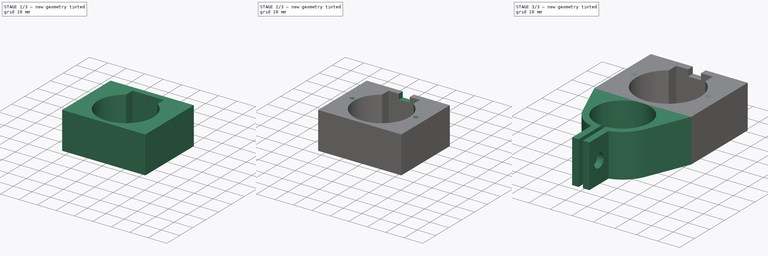
[diagram: build sequence overview — one tinted view per stage of 3, left to right]
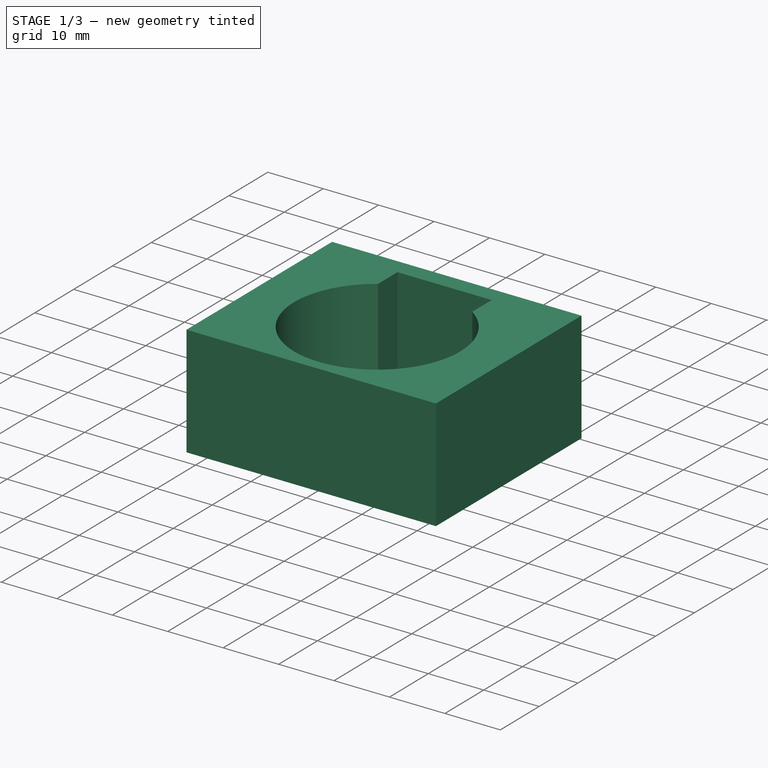
[diagram: stage 1 of 3 — iso view after this stage's code; geometry added in this stage tinted green]
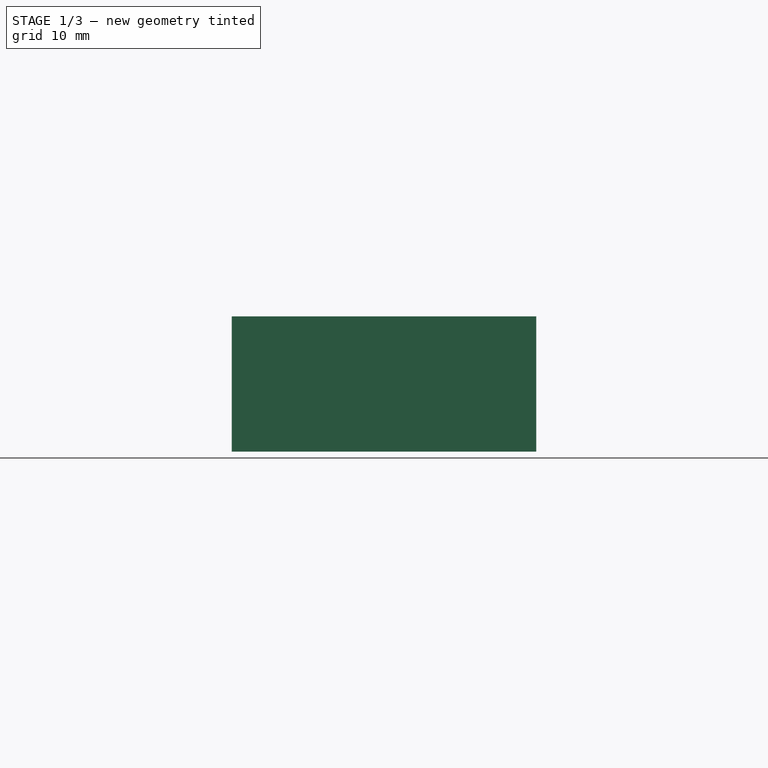
[diagram: stage 1 of 3 — front view after this stage's code; geometry added in this stage tinted green]
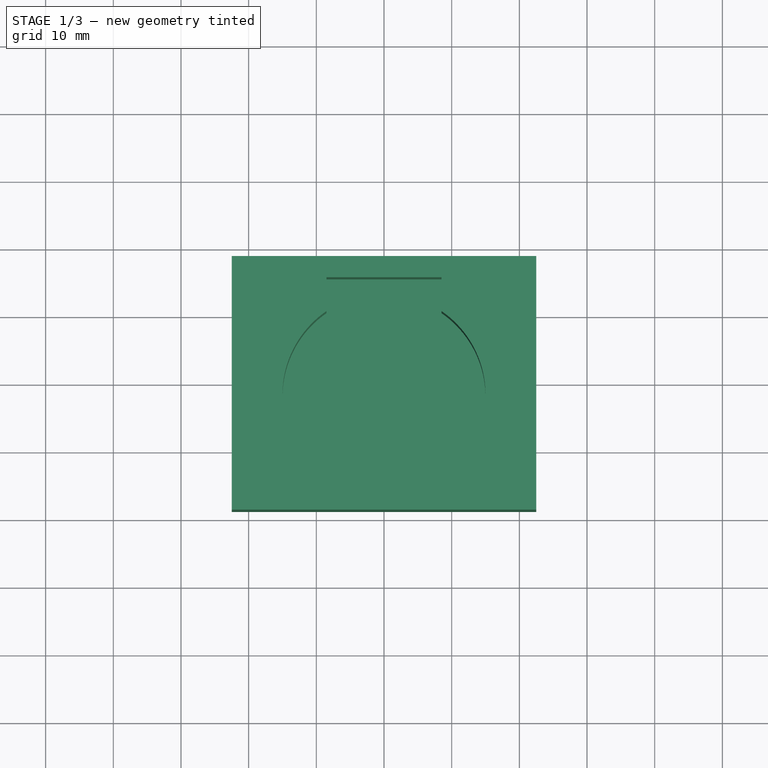
[diagram: stage 1 of 3 — top view after this stage's code; geometry added in this stage tinted green]
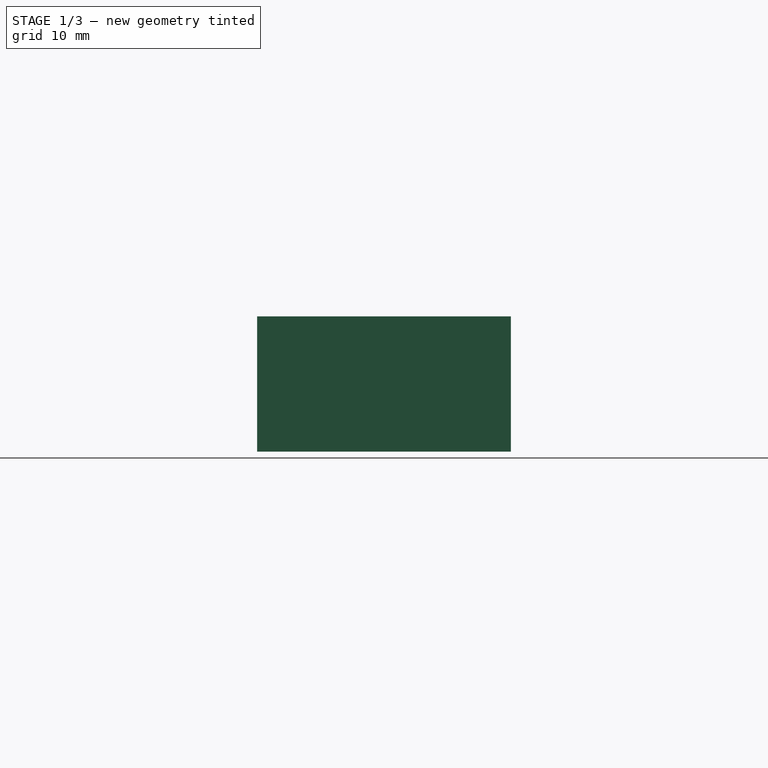
[diagram: stage 1 of 3 — right view after this stage's code; geometry added in this stage tinted green]
FCSTD DOCUMENT  (FreeCAD 0.20R29177 +233 (Git))
Label: motor_mount-with-threads
License: All rights reserved
LicenseURL: http://en.wikipedia.org/wiki/All_rights_reserved
objects: Sketcher::SketchObject×6, PartDesign::Pocket×3, PartDesign::Pad×2, Part::Part2DObjectPython×2, Part::Helix×2, PartDesign::SubtractivePipe×2, PartDesign::Body×1
note: 25 computed .brp shape members not serialized (recipe doc carries the construction recipe); baked Part::Feature solids carry a one-line shape summary decoded from their .brp

FEATURE [Sketcher::SketchObject] Sketch
  FullyConstrained = true
  MapMode = 5
  Support = -> [XY_Plane]
  sketch-geometry (6):
    g0: LineSegment StartX=-22.5 StartY=18.75 StartZ=0 EndX=22.5 EndY=18.75 EndZ=0
    g1: LineSegment StartX=22.5 StartY=18.75 StartZ=0 EndX=22.5 EndY=-18.75 EndZ=0
    g2: LineSegment StartX=22.5 StartY=-18.75 StartZ=0 EndX=-22.5 EndY=-18.75 EndZ=0
    g3: LineSegment StartX=-22.5 StartY=-18.75 StartZ=0 EndX=-22.5 EndY=18.75 EndZ=0
    g4: LineSegment StartX=0 StartY=18.75 StartZ=0 EndX=0 EndY=-18.75 EndZ=0
    g5: LineSegment StartX=-22.5 StartY=0 StartZ=0 EndX=22.5 EndY=0 EndZ=0
  constraints (18):
    c: Coincident(g0,g1)
    c: Coincident(g1,g2)
    c: Coincident(g2,g3)
    c: Coincident(g3,g0)
    c: Horizontal(g0)
    c: Horizontal(g2)
    c: Vertical(g1)
    c: Vertical(g3)
    c: PointOnObject(g4,g-2)
    c: PointOnObject(g4,g-2)
    c: PointOnObject(g5,g-1)
    c: PointOnObject(g5,g-1)
    c: Symmetric(g0,g0,g4)
    c: Symmetric(g0,g2,g5)
    c: PointOnObject(g4,g2)
    c: PointOnObject(g5,g1)
    c: DistanceX(g0,g0) = 45
    c: DistanceY(g3,g3) = 37.5
FEATURE [PartDesign::Pad] Pad
  Direction = (0,0,1)
  Length = 20
  Length2 = 10
  Profile = -> Sketch
  ReferenceAxis = -> Sketch [N_Axis]
  Type = 0
FEATURE [Sketcher::SketchObject] Sketch001
  ExternalGeometry = -> [Pad]
  FullyConstrained = true
  MapMode = 5
  Placement = pos=(0,0,20) rot=(0,0,1;0rad)
  Support = -> [Pad]
  sketch-geometry (7):
    g0: Circle CenterX=0 CenterY=-1.75 CenterZ=0 NormalX=0 NormalY=0 NormalZ=1 AngleXU=0 Radius=15
    g1: LineSegment StartX=-8.5 StartY=10.6092 StartZ=0 EndX=8.5 EndY=10.6092 EndZ=0
    g2: LineSegment StartX=8.5 StartY=10.6092 StartZ=0 EndX=8.5 EndY=15.6092 EndZ=0
    g3: LineSegment StartX=8.5 StartY=15.6092 StartZ=0 EndX=-8.5 EndY=15.6092 EndZ=0
    g4: LineSegment StartX=-8.5 StartY=15.6092 StartZ=0 EndX=-8.5 EndY=10.6092 EndZ=0
    g5: ArcOfCircle CenterX=0 CenterY=-1.75 CenterZ=0 NormalX=0 NormalY=0 NormalZ=1 AngleXU=0 Radius=15 StartAngle=2.17325 EndAngle=7.25153
    g6: LineSegment StartX=0 StartY=-16.75 StartZ=0 EndX=0 EndY=-18.75 EndZ=0
  constraints (21):
    c: PointOnObject(g0,g-2)
    c: Diameter(g0) = 30
    c: Coincident(g1,g2)
    c: Coincident(g2,g3)
    c: Coincident(g3,g4)
    c: Coincident(g4,g1)
    c: Horizontal(g1)
    c: Horizontal(g3)
    c: Vertical(g2)
    c: Vertical(g4)
    c: PointOnObject(g1,g0)
    c: Coincident(g5,g0)
    c: Coincident(g5,g2)
    c: Coincident(g5,g4)
    c: PointOnObject(g6,g0)
    c: PointOnObject(g6,g-3)
    c: Vertical(g6)
    c: PointOnObject(g6,g-2)
    c: DistanceY(g6,g6) = 2
    c: DistanceX(g1,g1) = 17
    c: DistanceY(g2,g2) = 5
FEATURE [PartDesign::Pocket] Pocket
  BaseFeature = -> Pad
  Direction = (0,0,-1)
  Length = 18
  Length2 = 5
  Profile = -> Sketch001
  ReferenceAxis = -> Sketch001 [N_Axis]
  Type = 0
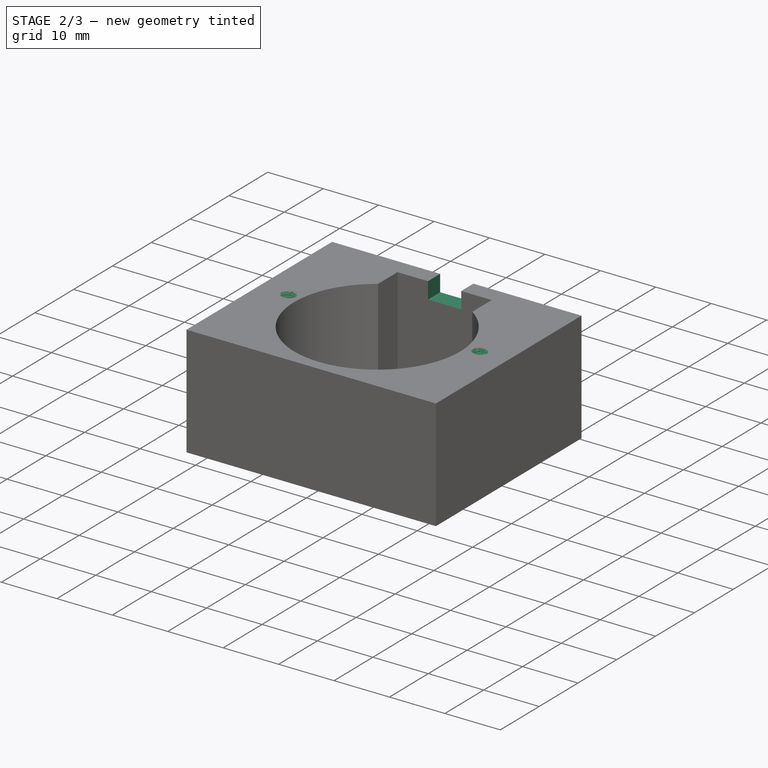
[diagram: stage 2 of 3 — iso view after this stage's code; geometry added in this stage tinted green]
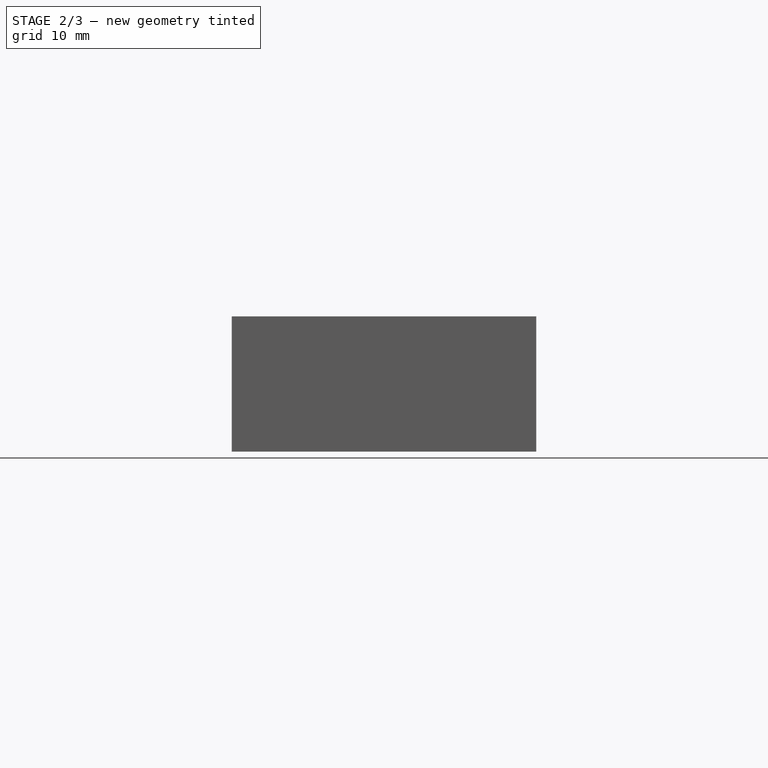
[diagram: stage 2 of 3 — front view after this stage's code; geometry added in this stage tinted green]
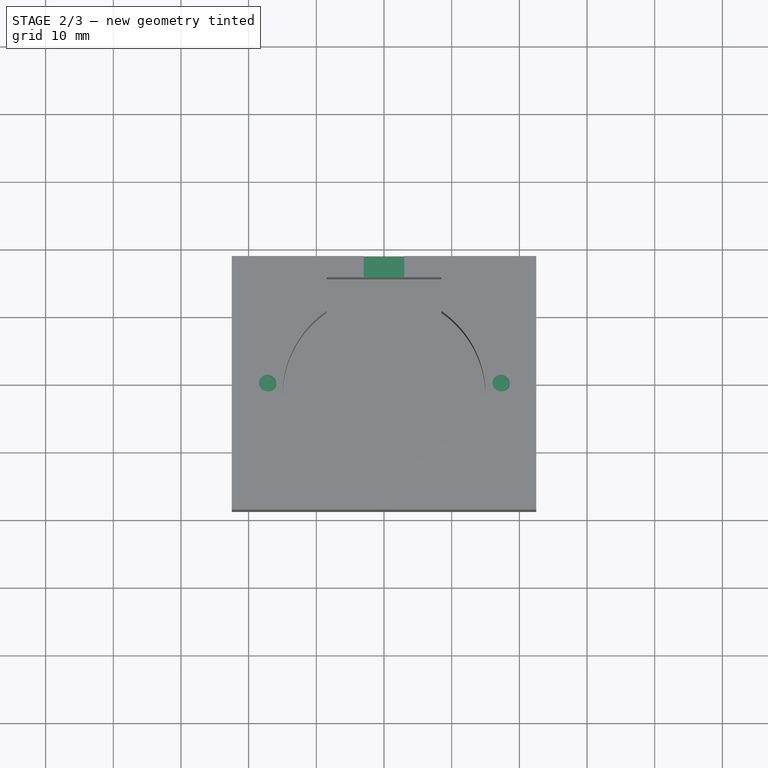
[diagram: stage 2 of 3 — top view after this stage's code; geometry added in this stage tinted green]
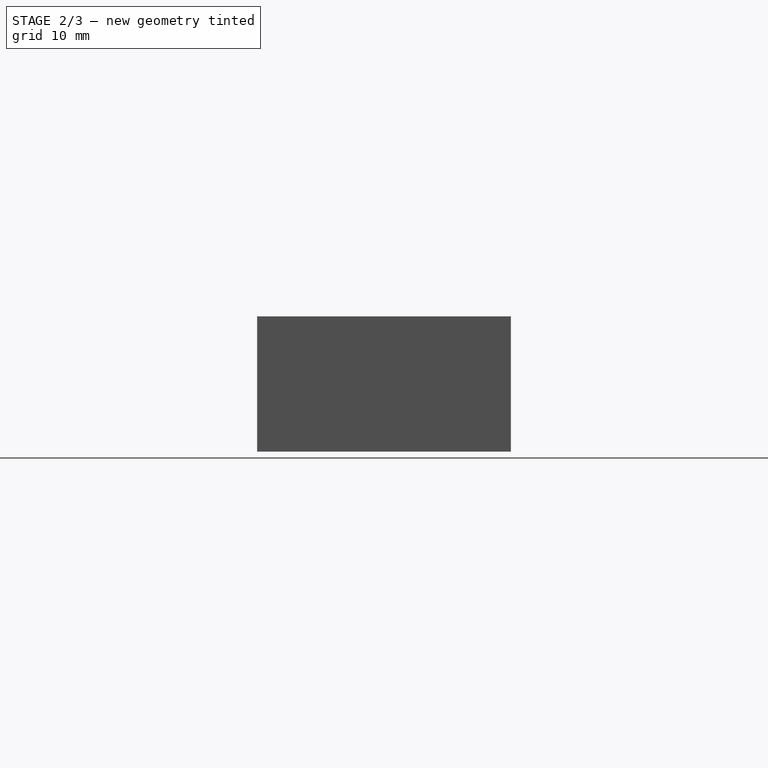
[diagram: stage 2 of 3 — right view after this stage's code; geometry added in this stage tinted green]
FEATURE [Sketcher::SketchObject] Sketch002
  FullyConstrained = true
  MapMode = 5
  Placement = pos=(0,0,20) rot=(0,0,1;0rad)
  Support = -> [Pocket]
  sketch-geometry (3):
    g0: Circle CenterX=-17.25 CenterY=0 CenterZ=0 NormalX=0 NormalY=0 NormalZ=1 AngleXU=0 Radius=0.5
    g1: LineSegment StartX=-17.25 StartY=0 StartZ=0 EndX=17.25 EndY=0 EndZ=0
    g2: Circle CenterX=17.25 CenterY=0 CenterZ=0 NormalX=0 NormalY=0 NormalZ=1 AngleXU=0 Radius=0.5
  constraints (7):
    c: PointOnObject(g0,g-1)
    c: Coincident(g1,g0)
    c: Symmetric(g1,g0,g-1)
    c: Diameter(g0) = 1
    c: Coincident(g2,g1)
    c: Equal(g2,g0)
    c: DistanceX(g1,g1) = 34.5
FEATURE [Part::Part2DObjectPython] VThreadProfile  # Draft 2D object (typed FeaturePython)
  Area = 5.7561
  Closed = true
  Continuity = C2
  Height = 15
  Helix = Helix
  Instructions = Expand this with the ... button to view instructions | Sweep this object along a helix of the same pitch to produce your thread. | It is recommended to make the helix in the ThreadProfile workbench. | If there is an active Body the ThreadProfile object will be put into it.,If not it can be dragged and dropped into the body later. | If there is an active Body when the helix is made there will be made a ShapeBinder for it | For internal threads you will need to cut the Sweep object out of a cylinder, or if using Part Design sweep it as a Subtractive Pipe. | Always use Frenet mode | I have provided some presets, but it is possible there could be some errors.  Double check for mission critical applications. | Also, the tolerances might be different from what you wish to have.  I believe the internal minor diameters are all minimum and the external are all maximum.
  InternalOrExternal = 0
  MakeFace = true
  MapMode = 11
  MinorDiameter = 2.459
  Parameterization = 1
  Pitch = 0.5
  Placement = pos=(-17.25,0,20) rot=(0.707107,-0.707107,0;3.14159rad)
  Points = (66) [(1.22382,0.118006,0),(1.20685,0.234922,0),(1.17873,0.349669,0),(1.13973,0.461188,0),(1.0902,0.568448,0),(1.03061,0.670459,0),(0.961501,0.766281,0),+59 more]
  Presets = 11
  Quality = 11
  Support = -> [Sketch002]
  ThreadCount = 30
  Variants = 0
  Version = 1.83
  external2S_data = [-0.00461051,-0.00886426,-0.0128148,-0.0165028,-0.0199596,-0.0232105,-0.0262759,-0.0291725,-0.0319145,-0.0345137,-0.0369805,-0.0393235,-0.0415505,-0.0436681,-0.0456823,-0.0475981,-0.0494204,-0.0511532,-0.0528003,-0.0543649,-0.0558502,+698 more]
  external3S_data = [-0.00677828,-0.0128149,-0.0182584,-0.0232106,-0.0277444,-0.0319145,-0.0357632,-0.0393236,-0.0426227,-0.0456823,-0.0485208,-0.0511533,-0.0535928,-0.0558503,-0.0579353,-0.059856,-0.0616195,-0.0632319,-0.0646984,-0.0660239,-0.0672123,+698 more]
  external45_data = [-0.00137363,-0.00271738,-0.00403219,-0.00531893,-0.00657844,-0.00781148,-0.00901878,-0.010201,-0.0113589,-0.012493,-0.0136039,-0.0146921,-0.0157583,-0.0168028,-0.0178261,-0.0188288,-0.0198112,-0.0207738,-0.0217169,-0.0226409,-0.0235462,+698 more]
  external_data = [-0.00235387,-0.00461052,-0.00677828,-0.00886428,-0.0108747,-0.0128149,-0.0146895,-0.0165028,-0.0182584,-0.0199597,-0.0216095,-0.0232106,-0.0247653,-0.0262759,-0.0277444,-0.0291725,-0.0305621,-0.0319145,-0.0332313,-0.0345138,-0.0357632,+698 more]
  internal2S_data = [0,0,0,0,0,0,0,0,0,0,0,0,0,0,0,0,0,0,0,0,0,0,0,0,0,0,0,0,0,0,0,0,0,0,0,0,0,0,0,0,0,0,0,0,0,0,0,0,0,0,0,0,0,0,0,0,0,0,0,0,0,0,0,0,0,0,0,0,0,0,0,0,0,0,0,0,0,0,0,0,0,0,0,0,0,0,0,0,0,0,0.00481128,0.00962256,0.0144338,0.0192451,0.0240564,+624 more]
  internal3S_data = [0,0,0,0,0,0,0,0,0,0,0,0,0,0,0,0,0,0,0,0,0,0,0,0,0,0,0,0,0,0,0,0,0,0,0,0,0,0,0,0,0,0,0,0,0,0,0,0,0,0,0,0,0,0,0,0,0,0,0,0,0.00721688,0.0144338,0.0216506,0.0288675,0.0360844,0.0433013,0.0505181,0.057735,0.0649519,0.0721688,0.0793857,0.0866025,+647 more]
  internal45_data = [0,0,0,0,0,0,0,0,0,0,0,0,0,0,0,0,0,0,0,0,0,0,0,0,0,0,0,0,0,0,0,0,0,0,0,0,0,0,0,0,0,0,0,0,0,0,0,0,0,0,0,0,0,0,0,0,0,0,0,0,0,0,0,0,0,0,0,0,0,0,0,0,0,0,0,0,0,0,0,0,0,0,0,0,0,0,0,0,0,0,0,0,0,0,0,0,0,0,0,0,0,0,0,0,0,0,0,0,0,0,0,0,0,0,0,0,0,0,0,0,+599 more]
  internal_data = [0,0,0,0,0,0,0,0,0,0,0,0,0,0,0,0,0,0,0,0,0,0,0,0,0,0,0,0,0,0,0,0,0,0,0,0,0,0,0,0,0,0,0,0,0,0,0,0,0,0,0,0,0,0,0,0,0,0,0,0,0,0,0,0,0,0,0,0,0,0,0,0,0,0,0,0,0,0,0,0,0,0,0,0,0,0,0,0,0,0,0,0,0,0,0,0,0,0,0,0,0,0,0,0,0,0,0,0,0,0,0,0,0,0,0,0,0,0,0,0,+599 more]
  preset_names = <blob: 3959 chars omitted>
  presets_data = [0,0,0,2.20878,24.1173,24.6888,0.25,0.693,0.729,0.25,0.793,0.829,0.25,0.893,0.929,0.3,1.032,1.075,0.35,1.171,1.221,0.35,1.371,1.421,0.4,1.509,1.567,0.45,1.648,1.713,0.45,1.948,2.013,0.5,2.387,2.459,0.6,2.764,2.85,0.7,3.141,3.242,0.75,3.58,+712 more]
FEATURE [Part::Helix] Helix
  Angle = 0
  AttacherType = Attacher::AttachEngine3D
  Height = 15
  LocalCoord = 0
  MapMode = 11
  Pitch = 0.5
  Placement = pos=(-17.25,0,20) rot=(0.707107,-0.707107,0;3.14159rad)
  Radius = 1
  SegmentLength = 0
  Style = 0
  Support = -> [Sketch002]
  expr: AttachmentOffset = VThreadProfile.AttachmentOffset
  expr: Height = VThreadProfile.ThreadCount * VThreadProfile.Pitch
  expr: MapMode = VThreadProfile.MapMode
  expr: MapPathParameter = VThreadProfile.MapPathParameter
  expr: MapReversed = VThreadProfile.MapReversed
  expr: Pitch = VThreadProfile.Pitch
  expr: Support = VThreadProfile.Support
FEATURE [PartDesign::SubtractivePipe] SubtractivePipe
  AuxilleryCurvelinear = true
  AuxillerySpineTangent = false
  BaseFeature = -> Pocket
  Binormal = (0,0,0)
  Mode = 2
  Profile = -> VThreadProfile
  Spine = -> Helix
  SpineTangent = false
  Transformation = 0
  Transition = 0
FEATURE [Part::Part2DObjectPython] VThreadProfile001  # Draft 2D object (typed FeaturePython)
  Area = 5.7561
  Closed = true
  Continuity = C2
  Height = 15
  Helix = Helix001
  Instructions = Expand this with the ... button to view instructions | Sweep this object along a helix of the same pitch to produce your thread. | It is recommended to make the helix in the ThreadProfile workbench. | If there is an active Body the ThreadProfile object will be put into it.,If not it can be dragged and dropped into the body later. | If there is an active Body when the helix is made there will be made a ShapeBinder for it | For internal threads you will need to cut the Sweep object out of a cylinder, or if using Part Design sweep it as a Subtractive Pipe. | Always use Frenet mode | I have provided some presets, but it is possible there could be some errors.  Double check for mission critical applications. | Also, the tolerances might be different from what you wish to have.  I believe the internal minor diameters are all minimum and the external are all maximum.
  InternalOrExternal = 0
  MakeFace = true
  MapMode = 11
  MinorDiameter = 2.459
  Parameterization = 1
  Pitch = 0.5
  Placement = pos=(17.25,0,20) rot=(0.707107,-0.707107,0;3.14159rad)
  Points = (66) [(1.22382,0.118006,0),(1.20685,0.234922,0),(1.17873,0.349669,0),(1.13973,0.461188,0),(1.0902,0.568448,0),(1.03061,0.670459,0),(0.961501,0.766281,0),+59 more]
  Presets = 11
  Quality = 11
  Support = -> [Sketch002]
  ThreadCount = 30
  Variants = 0
  Version = 1.83
  external2S_data = [-0.00461051,-0.00886426,-0.0128148,-0.0165028,-0.0199596,-0.0232105,-0.0262759,-0.0291725,-0.0319145,-0.0345137,-0.0369805,-0.0393235,-0.0415505,-0.0436681,-0.0456823,-0.0475981,-0.0494204,-0.0511532,-0.0528003,-0.0543649,-0.0558502,+698 more]
  external3S_data = [-0.00677828,-0.0128149,-0.0182584,-0.0232106,-0.0277444,-0.0319145,-0.0357632,-0.0393236,-0.0426227,-0.0456823,-0.0485208,-0.0511533,-0.0535928,-0.0558503,-0.0579353,-0.059856,-0.0616195,-0.0632319,-0.0646984,-0.0660239,-0.0672123,+698 more]
  external45_data = [-0.00137363,-0.00271738,-0.00403219,-0.00531893,-0.00657844,-0.00781148,-0.00901878,-0.010201,-0.0113589,-0.012493,-0.0136039,-0.0146921,-0.0157583,-0.0168028,-0.0178261,-0.0188288,-0.0198112,-0.0207738,-0.0217169,-0.0226409,-0.0235462,+698 more]
  external_data = [-0.00235387,-0.00461052,-0.00677828,-0.00886428,-0.0108747,-0.0128149,-0.0146895,-0.0165028,-0.0182584,-0.0199597,-0.0216095,-0.0232106,-0.0247653,-0.0262759,-0.0277444,-0.0291725,-0.0305621,-0.0319145,-0.0332313,-0.0345138,-0.0357632,+698 more]
  internal2S_data = [0,0,0,0,0,0,0,0,0,0,0,0,0,0,0,0,0,0,0,0,0,0,0,0,0,0,0,0,0,0,0,0,0,0,0,0,0,0,0,0,0,0,0,0,0,0,0,0,0,0,0,0,0,0,0,0,0,0,0,0,0,0,0,0,0,0,0,0,0,0,0,0,0,0,0,0,0,0,0,0,0,0,0,0,0,0,0,0,0,0,0.00481128,0.00962256,0.0144338,0.0192451,0.0240564,+624 more]
  internal3S_data = [0,0,0,0,0,0,0,0,0,0,0,0,0,0,0,0,0,0,0,0,0,0,0,0,0,0,0,0,0,0,0,0,0,0,0,0,0,0,0,0,0,0,0,0,0,0,0,0,0,0,0,0,0,0,0,0,0,0,0,0,0.00721688,0.0144338,0.0216506,0.0288675,0.0360844,0.0433013,0.0505181,0.057735,0.0649519,0.0721688,0.0793857,0.0866025,+647 more]
  internal45_data = [0,0,0,0,0,0,0,0,0,0,0,0,0,0,0,0,0,0,0,0,0,0,0,0,0,0,0,0,0,0,0,0,0,0,0,0,0,0,0,0,0,0,0,0,0,0,0,0,0,0,0,0,0,0,0,0,0,0,0,0,0,0,0,0,0,0,0,0,0,0,0,0,0,0,0,0,0,0,0,0,0,0,0,0,0,0,0,0,0,0,0,0,0,0,0,0,0,0,0,0,0,0,0,0,0,0,0,0,0,0,0,0,0,0,0,0,0,0,0,0,+599 more]
  internal_data = [0,0,0,0,0,0,0,0,0,0,0,0,0,0,0,0,0,0,0,0,0,0,0,0,0,0,0,0,0,0,0,0,0,0,0,0,0,0,0,0,0,0,0,0,0,0,0,0,0,0,0,0,0,0,0,0,0,0,0,0,0,0,0,0,0,0,0,0,0,0,0,0,0,0,0,0,0,0,0,0,0,0,0,0,0,0,0,0,0,0,0,0,0,0,0,0,0,0,0,0,0,0,0,0,0,0,0,0,0,0,0,0,0,0,0,0,0,0,0,0,+599 more]
  preset_names = <blob: 3959 chars omitted>
  presets_data = [0,0,0,2.20878,24.1173,24.6888,0.25,0.693,0.729,0.25,0.793,0.829,0.25,0.893,0.929,0.3,1.032,1.075,0.35,1.171,1.221,0.35,1.371,1.421,0.4,1.509,1.567,0.45,1.648,1.713,0.45,1.948,2.013,0.5,2.387,2.459,0.6,2.764,2.85,0.7,3.141,3.242,0.75,3.58,+712 more]
FEATURE [Part::Helix] Helix001
  Angle = 0
  AttacherType = Attacher::AttachEngine3D
  Height = 15
  LocalCoord = 0
  MapMode = 11
  Pitch = 0.5
  Placement = pos=(17.25,0,20) rot=(0.707107,-0.707107,0;3.14159rad)
  Radius = 1
  SegmentLength = 0
  Style = 0
  Support = -> [Sketch002]
  expr: AttachmentOffset = VThreadProfile001.AttachmentOffset
  expr: Height = VThreadProfile001.ThreadCount * VThreadProfile001.Pitch
  expr: MapMode = VThreadProfile001.MapMode
  expr: MapPathParameter = VThreadProfile001.MapPathParameter
  expr: MapReversed = VThreadProfile001.MapReversed
  expr: Pitch = VThreadProfile001.Pitch
  expr: Support = VThreadProfile001.Support
FEATURE [PartDesign::SubtractivePipe] SubtractivePipe001
  AuxilleryCurvelinear = true
  AuxillerySpineTangent = false
  BaseFeature = -> SubtractivePipe
  Binormal = (0,0,0)
  Mode = 2
  Profile = -> VThreadProfile001
  Spine = -> Helix001
  SpineTangent = false
  Transformation = 0
  Transition = 0
FEATURE [Sketcher::SketchObject] Sketch003
  ExternalGeometry = -> [SubtractivePipe001]
  FullyConstrained = true
  MapMode = 5
  Placement = pos=(0,0,20) rot=(0,0,1;0rad)
  Support = -> [SubtractivePipe001]
  sketch-geometry (5):
    g0: LineSegment StartX=-3 StartY=18.75 StartZ=0 EndX=3 EndY=18.75 EndZ=0
    g1: LineSegment StartX=3 StartY=18.75 StartZ=0 EndX=3 EndY=15.6092 EndZ=0
    g2: LineSegment StartX=3 StartY=15.6092 StartZ=0 EndX=-3 EndY=15.6092 EndZ=0
    g3: LineSegment StartX=-3 StartY=15.6092 StartZ=0 EndX=-3 EndY=18.75 EndZ=0
    g4: LineSegment StartX=0 StartY=18.75 StartZ=0 EndX=0 EndY=15.6092 EndZ=0
  constraints (15):
    c: Coincident(g0,g1)
    c: Coincident(g1,g2)
    c: Coincident(g2,g3)
    c: Coincident(g3,g0)
    c: Horizontal(g0)
    c: Horizontal(g2)
    c: Vertical(g1)
    c: Vertical(g3)
    c: PointOnObject(g0,g-3)
    c: PointOnObject(g4,g0)
    c: Vertical(g4)
    c: Symmetric(g2,g1,g4)
    c: PointOnObject(g4,g-2)
    c: DistanceX(g0,g0) = 6
    c: PointOnObject(g1,g-5)
FEATURE [PartDesign::Pocket] Pocket001
  BaseFeature = -> SubtractivePipe001
  Direction = (0,0,-1)
  Length = 3
  Length2 = 5
  Profile = -> Sketch003
  ReferenceAxis = -> Sketch003 [N_Axis]
  Type = 0
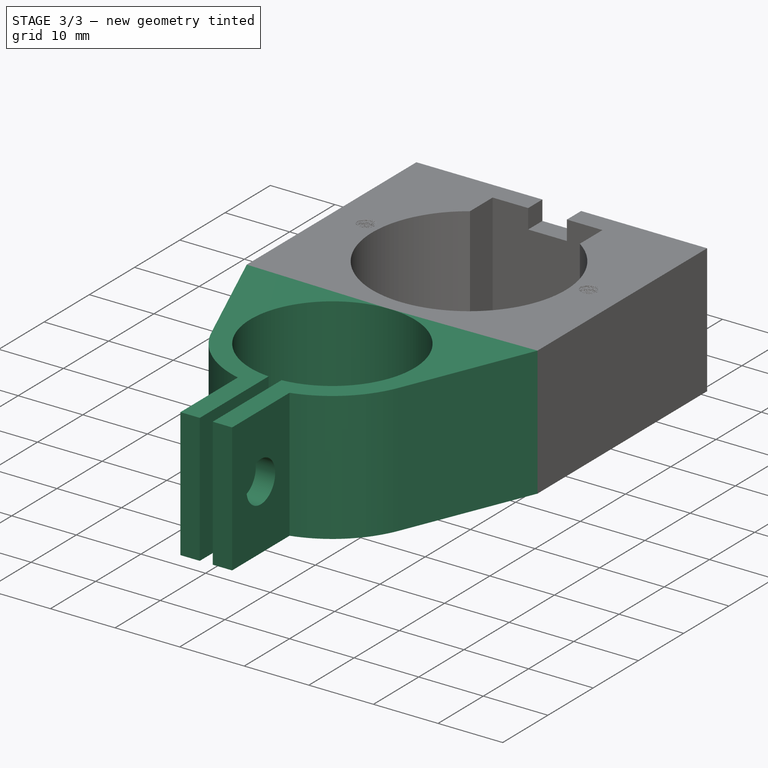
[diagram: stage 3 of 3 — iso view after this stage's code; geometry added in this stage tinted green]
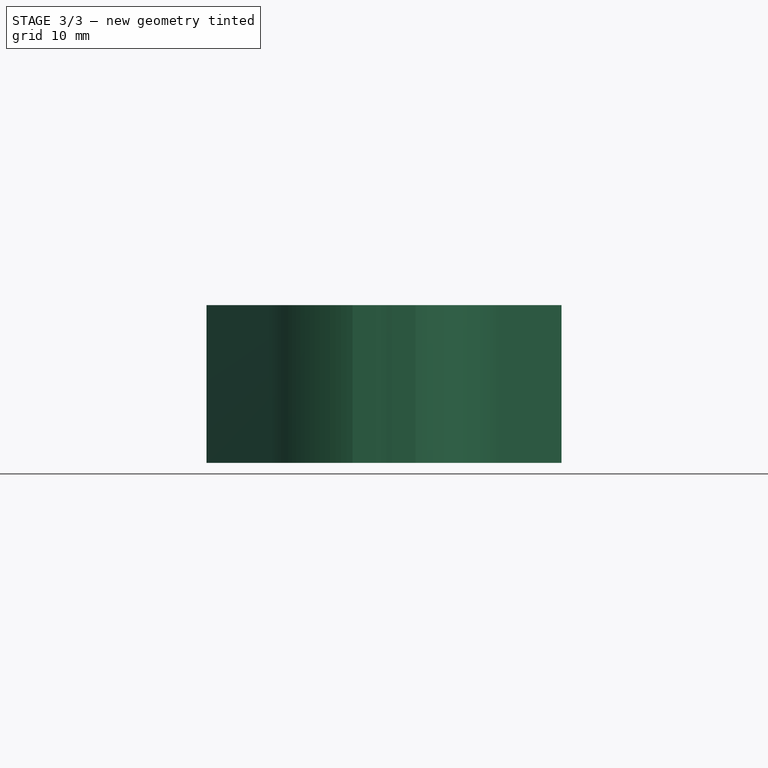
[diagram: stage 3 of 3 — front view after this stage's code; geometry added in this stage tinted green]
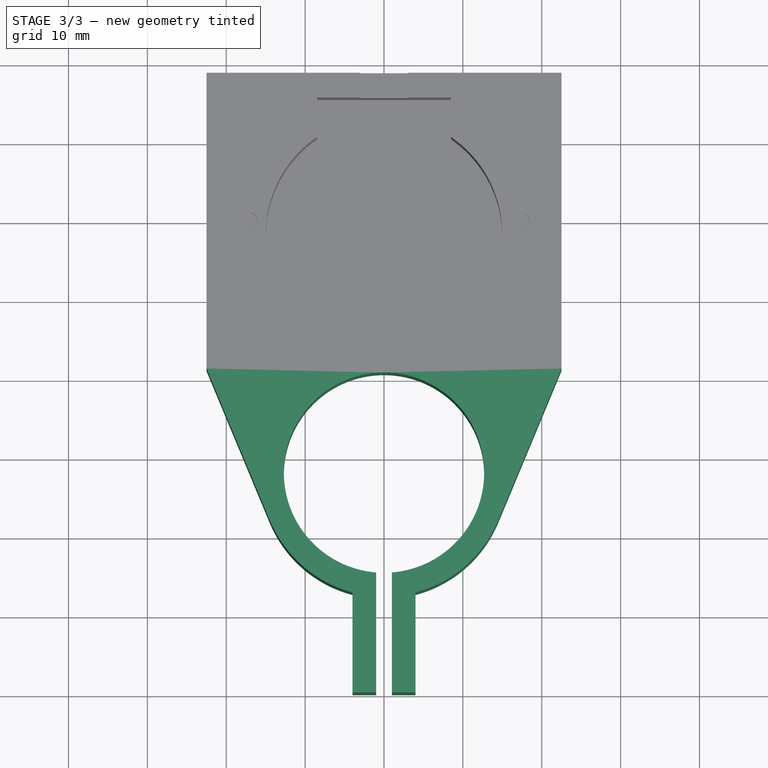
[diagram: stage 3 of 3 — top view after this stage's code; geometry added in this stage tinted green]
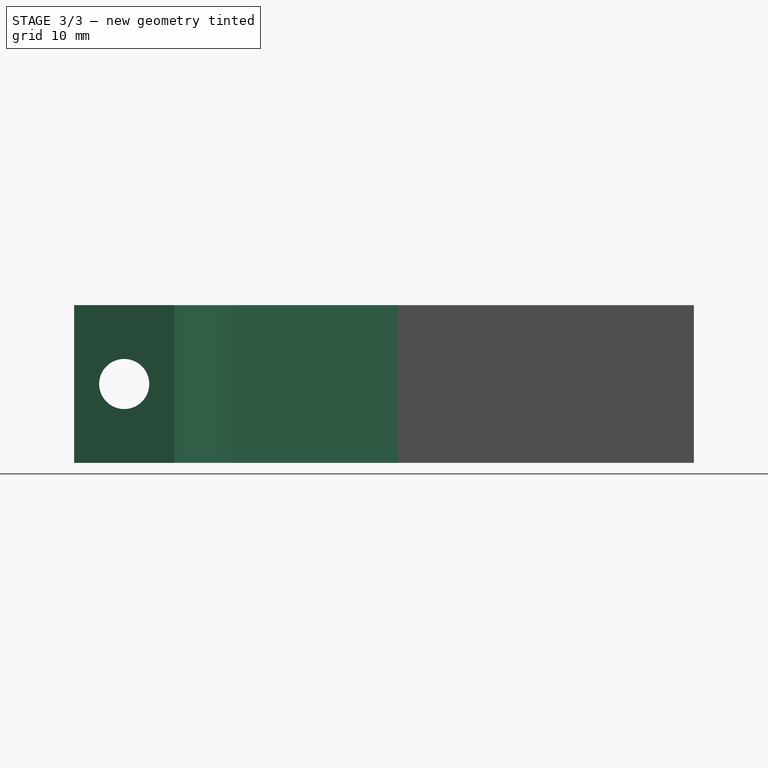
[diagram: stage 3 of 3 — right view after this stage's code; geometry added in this stage tinted green]
FEATURE [Sketcher::SketchObject] Sketch004
  ExternalGeometry = -> [Pocket001]
  FullyConstrained = true
  MapMode = 5
  Placement = pos=(0,0,20) rot=(0,0,1;0rad)
  Support = -> [Pocket001]
  sketch-geometry (21):
    g0: Circle CenterX=0 CenterY=-31.95 CenterZ=0 NormalX=0 NormalY=0 NormalZ=1 AngleXU=0 Radius=12.7
    g1: Circle CenterX=0 CenterY=-31.95 CenterZ=0 NormalX=0 NormalY=0 NormalZ=1 AngleXU=0 Radius=15.7
    g2: LineSegment StartX=-12.7 StartY=-31.95 StartZ=0 EndX=-15.7 EndY=-31.95 EndZ=0
    g3: LineSegment StartX=-4 StartY=-44.0036 StartZ=0 EndX=4 EndY=-44.0036 EndZ=0
    g4: LineSegment StartX=4 StartY=-44.0036 StartZ=0 EndX=4 EndY=-59.8319 EndZ=0
    g5: LineSegment StartX=-4 StartY=-59.8319 StartZ=0 EndX=-4 EndY=-44.0036 EndZ=0
    g6: LineSegment StartX=-4 StartY=-47.1319 StartZ=0 EndX=-4 EndY=-59.8319 EndZ=0
    g7: LineSegment StartX=4 StartY=-47.1319 StartZ=0 EndX=4 EndY=-59.8319 EndZ=0
    g8: ArcOfCircle CenterX=0 CenterY=-31.95 CenterZ=0 NormalX=0 NormalY=0 NormalZ=1 AngleXU=0 Radius=12.7 StartAngle=4.79121 EndAngle=10.9168
    g9: LineSegment StartX=-1 StartY=-44.6106 StartZ=0 EndX=-1 EndY=-59.8319 EndZ=0
    g10: LineSegment StartX=1 StartY=-44.6106 StartZ=0 EndX=1 EndY=-59.8319 EndZ=0
    g11: LineSegment StartX=-1 StartY=-44.6106 StartZ=0 EndX=1 EndY=-44.6106 EndZ=0
    g12: GeomPoint X=0 Y=-44.6106 Z=0
    g13: LineSegment StartX=-1 StartY=-59.8319 StartZ=0 EndX=-4 EndY=-59.8319 EndZ=0
    g14: LineSegment StartX=1 StartY=-59.8319 StartZ=0 EndX=4 EndY=-59.8319 EndZ=0
    g15: ArcOfCircle CenterX=0 CenterY=-31.95 CenterZ=0 NormalX=0 NormalY=0 NormalZ=1 AngleXU=0 Radius=15.7 StartAngle=3.53601 EndAngle=4.45477
    g16: LineSegment StartX=-14.4945 StartY=-37.9831 StartZ=0 EndX=-22.5 EndY=-18.75 EndZ=0
    g17: LineSegment StartX=0 StartY=-19.25 StartZ=0 EndX=0 EndY=-18.75 EndZ=0
    g18: LineSegment StartX=-22.5 StartY=-18.75 StartZ=0 EndX=22.5 EndY=-18.75 EndZ=0
    g19: LineSegment StartX=22.5 StartY=-18.75 StartZ=0 EndX=14.4945 EndY=-37.9831 EndZ=0
    g20: ArcOfCircle CenterX=0 CenterY=-31.95 CenterZ=0 NormalX=0 NormalY=0 NormalZ=1 AngleXU=0 Radius=15.7 StartAngle=4.97001 EndAngle=5.88876
  constraints (55):
    c: PointOnObject(g0,g-2)
    c: Diameter(g0) = 25.4
    c: Coincident(g1,g0)
    c: PointOnObject(g2,g0)
    c: Horizontal(g2)
    c: Perpendicular(g0,g2)
    c: DistanceX(g2,g2) = 3
    c: Coincident(g3,g4)
    c: Coincident(g5,g3)
    c: Horizontal(g3)
    c: Vertical(g4)
    c: Vertical(g5)
    c: PointOnObject(g3,g0)
    c: PointOnObject(g3,g0)
    c: Vertical(g6)
    c: PointOnObject(g7,g4)
    c: Coincident(g7,g4)
    c: PointOnObject(g7,g1)
    c: Coincident(g8,g0)
    c: PointOnObject(g8,g0)
    c: Coincident(g9,g8)
    c: Vertical(g9)
    c: Coincident(g10,g8)
    c: Vertical(g10)
    c: Coincident(g11,g8)
    c: Coincident(g11,g8)
    c: Symmetric(g8,g8,g12)
    c: PointOnObject(g12,g-2)
    c: Coincident(g13,g9)
    c: Coincident(g13,g6)
    c: Horizontal(g13)
    c: Coincident(g14,g7)
    c: Coincident(g14,g10)
    c: Coincident(g15,g8)
    c: Coincident(g15,g6)
    c: PointOnObject(g17,g8)
    c: PointOnObject(g17,g-3)
    c: PointOnObject(g17,g-2)
    c: PointOnObject(g17,g-2)
    c: DistanceY(g17,g17) = 0.5
    c: Coincident(g18,g16)
    c: Coincident(g19,g18)
    c: Coincident(g20,g8)
    c: Coincident(g20,g7)
    c: Tangent(g14,g13)
    c: Coincident(g5,g6)
    c: DistanceX(g13,g13) = 3
    c: DistanceX(g8,g8) = 2
    c: DistanceY(g7,g7) = 12.7
    c: Coincident(g16,g-3)
    c: PointOnObject(g6,g1)
    c: PointOnObject(g2,g1)
    c: Tangent(g16,g15) = 1.5708
    c: Coincident(g-3,g18)
    c: Tangent(g20,g19) = 1.5708
FEATURE [PartDesign::Pad] Pad001
  BaseFeature = -> Pocket001
  Direction = (0,0,1)
  Length = 10
  Length2 = 10
  Profile = -> Sketch004
  ReferenceAxis = -> Sketch004 [N_Axis]
  Type = 3
  UpToFace = -> Pocket001 [Face2]
FEATURE [Sketcher::SketchObject] Sketch005
  ExternalGeometry = -> [Pad001]
  FullyConstrained = true
  MapMode = 5
  Placement = pos=(-4,0,0) rot=(0.57735,-0.57735,-0.57735;2.0944rad)
  Support = -> [Pad001]
  sketch-geometry (3):
    g0: Circle CenterX=53.4819 CenterY=10 CenterZ=0 NormalX=0 NormalY=0 NormalZ=1 AngleXU=0 Radius=3.175
    g1: LineSegment StartX=53.4819 StartY=20 StartZ=0 EndX=53.4819 EndY=0 EndZ=0
    g2: LineSegment StartX=59.8319 StartY=10 StartZ=0 EndX=47.1319 EndY=10 EndZ=0
  constraints (9):
    c: Diameter(g0) = 6.35
    c: PointOnObject(g1,g-3)
    c: PointOnObject(g1,g-1)
    c: Vertical(g1)
    c: PointOnObject(g2,g-4)
    c: PointOnObject(g2,g-5)
    c: Horizontal(g2)
    c: Symmetric(g2,g2,g0)
    c: Symmetric(g1,g1,g0)
FEATURE [PartDesign::Pocket] Pocket002
  BaseFeature = -> Pad001
  Direction = (1,0,0)
  Length = 0
  Length2 = 5
  Profile = -> Sketch005
  ReferenceAxis = -> Sketch005 [N_Axis]
  Type = 3
  UpToFace = -> Pad001 [Face20]
FEATURE [PartDesign::Body] Body
  Group = -> [Sketch,Pad,Sketch001,Pocket,Sketch002,VThreadProfile,Helix,SubtractivePipe,VThreadProfile001,Helix001,SubtractivePipe001,Sketch003,Pocket001,Sketch004,Pad001,Sketch005,Pocket002]
  Origin = -> Origin
  Tip = -> Pocket001
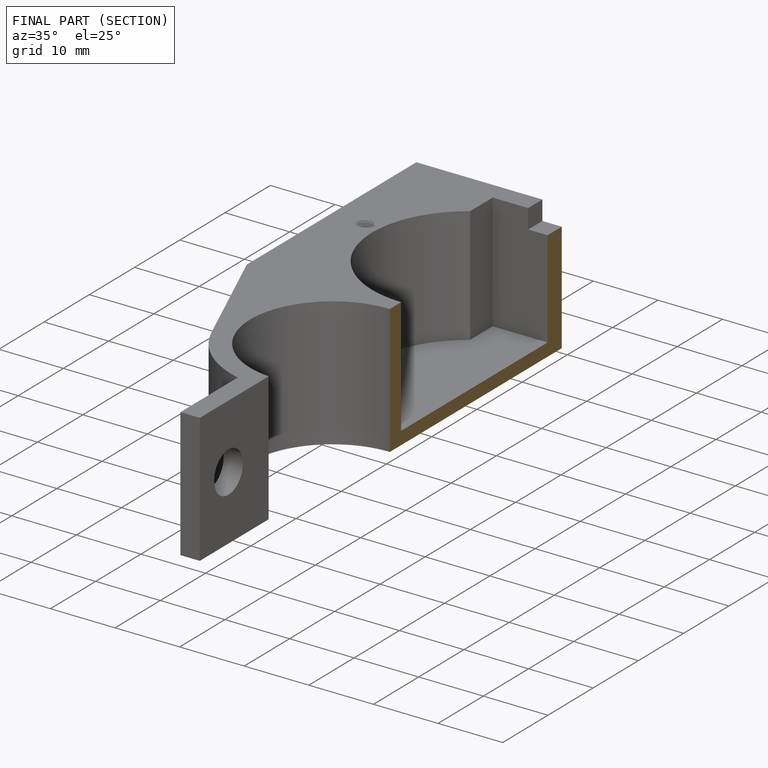
[diagram: finished part — half-section view (interior)]
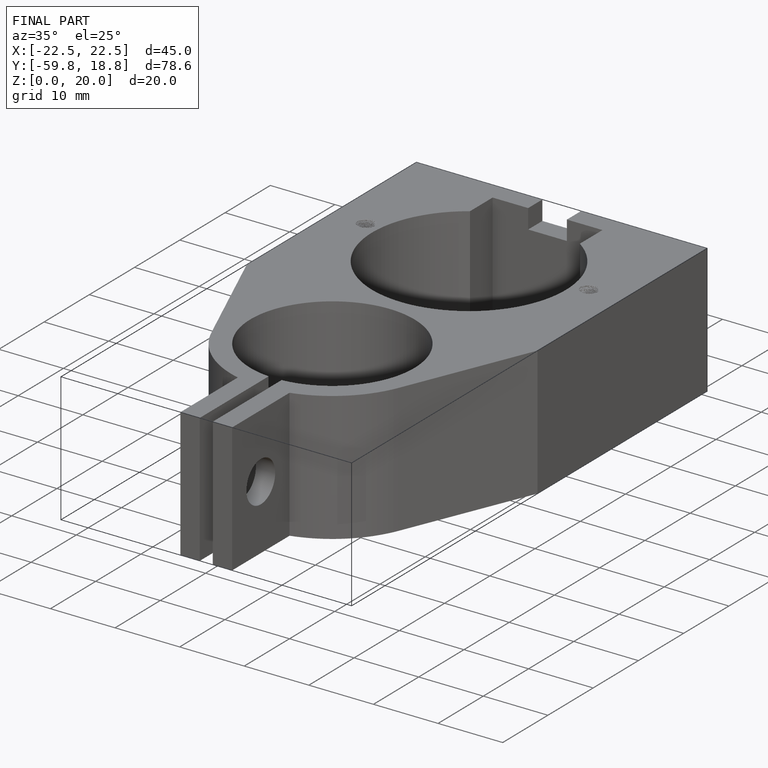
[diagram: finished part — iso view with bounding-box wireframe]
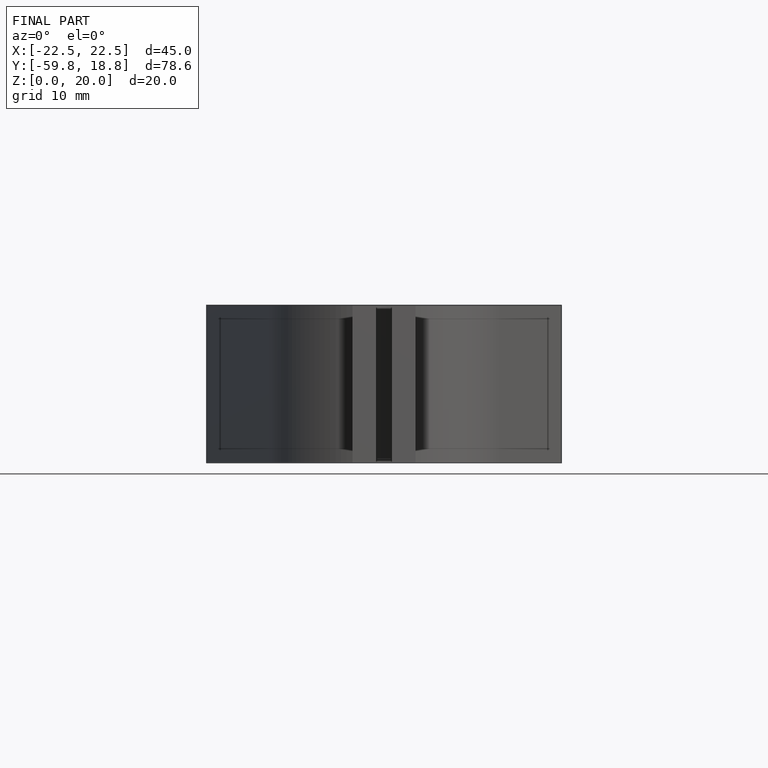
[diagram: finished part — front view with bounding-box wireframe]
